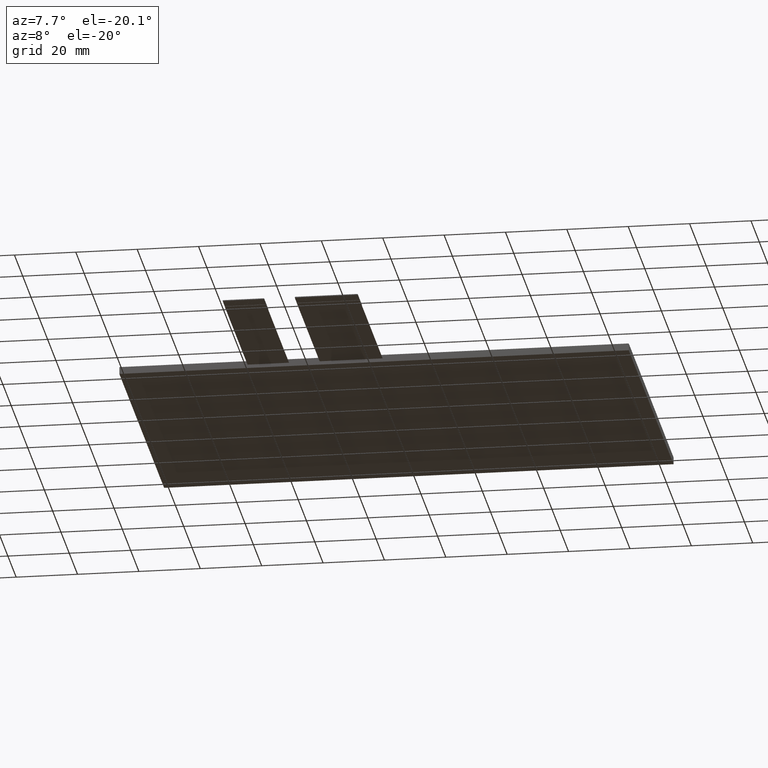
[diagram: clean part render]
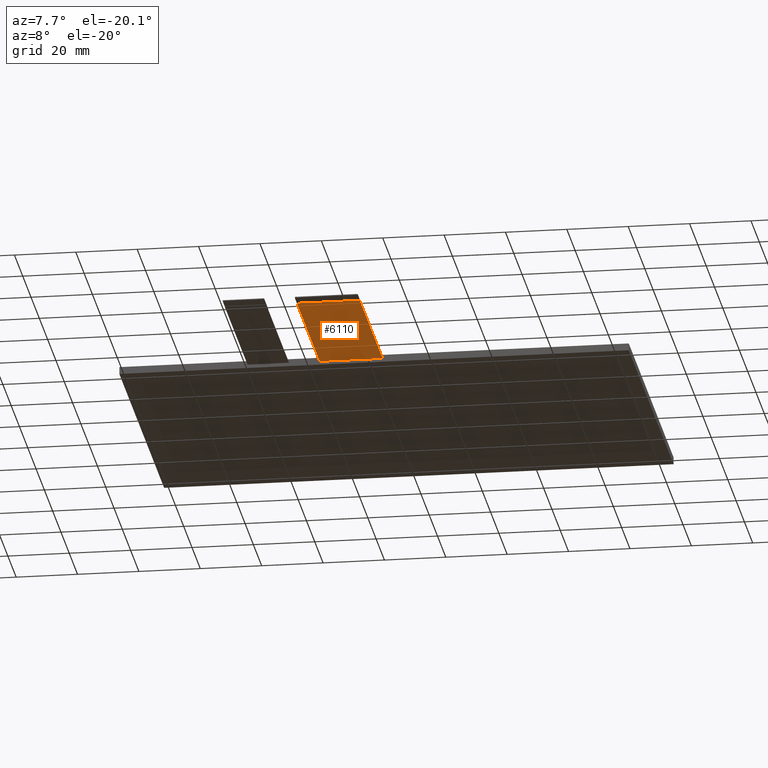
[diagram: same view with one face highlighted and labeled with its STEP entity id]
A machine part, auxiliary view. The second image highlights one B-rep face of the part: STEP entity #6110.
In plain terms, the highlighted planar face has unit normal (0, 0, -1).
Its self-contained STEP definition (entity closure, byte-faithful):
#340=PLANE('',#6430);
#632=FACE_OUTER_BOUND('',#924,.T.);
#924=EDGE_LOOP('',(#5775,#5776,#5777,#5778));
#1749=LINE('',#9546,#2605);
#1762=LINE('',#9571,#2618);
#1771=LINE('',#9590,#2627);
#1775=LINE('',#9597,#2631);
#2605=VECTOR('',#7819,10.);
#2618=VECTOR('',#7838,10.);
#2627=VECTOR('',#7857,10.);
#2631=VECTOR('',#7865,10.);
#3205=VERTEX_POINT('',#9543);
#3206=VERTEX_POINT('',#9545);
#3215=VERTEX_POINT('',#9569);
#3220=VERTEX_POINT('',#9589);
#4053=EDGE_CURVE('',#3206,#3205,#1749,.T.);
#4066=EDGE_CURVE('',#3205,#3215,#1762,.T.);
#4075=EDGE_CURVE('',#3220,#3206,#1771,.T.);
#4079=EDGE_CURVE('',#3220,#3215,#1775,.T.);
#5775=ORIENTED_EDGE('',*,*,#4053,.T.);
#5776=ORIENTED_EDGE('',*,*,#4066,.T.);
#5777=ORIENTED_EDGE('',*,*,#4079,.F.);
#5778=ORIENTED_EDGE('',*,*,#4075,.T.);
#6110=ADVANCED_FACE('',(#632),#340,.T.);
#6430=AXIS2_PLACEMENT_3D('',#9596,#7863,#7864);
#7819=DIRECTION('',(-1.,0.,0.));
#7838=DIRECTION('',(-2.22044604925031E-16,1.,0.));
#7857=DIRECTION('',(-1.20274161001059E-16,-1.,0.));
#7863=DIRECTION('center_axis',(0.,0.,-1.));
#7864=DIRECTION('ref_axis',(-1.,0.,0.));
#7865=DIRECTION('',(-1.,-5.35047240783208E-17,0.));
#9543=CARTESIAN_POINT('',(-17.42,-110.12,-1.2));
#9545=CARTESIAN_POINT('',(3.08,-110.12,-1.2));
#9546=CARTESIAN_POINT('',(-2.04500000000001,-110.12,-1.2));
#9569=CARTESIAN_POINT('',(-17.42,-55.12,-1.2));
#9571=CARTESIAN_POINT('',(-17.42,-55.12,-1.2));
#9589=CARTESIAN_POINT('',(3.08,-55.12,-1.2));
#9590=CARTESIAN_POINT('',(3.07999999999999,-115.12,-1.2));
#9596=CARTESIAN_POINT('Origin',(-7.17000000000001,-85.12,-1.2));
#9597=CARTESIAN_POINT('',(38.065,-55.12,-1.2));